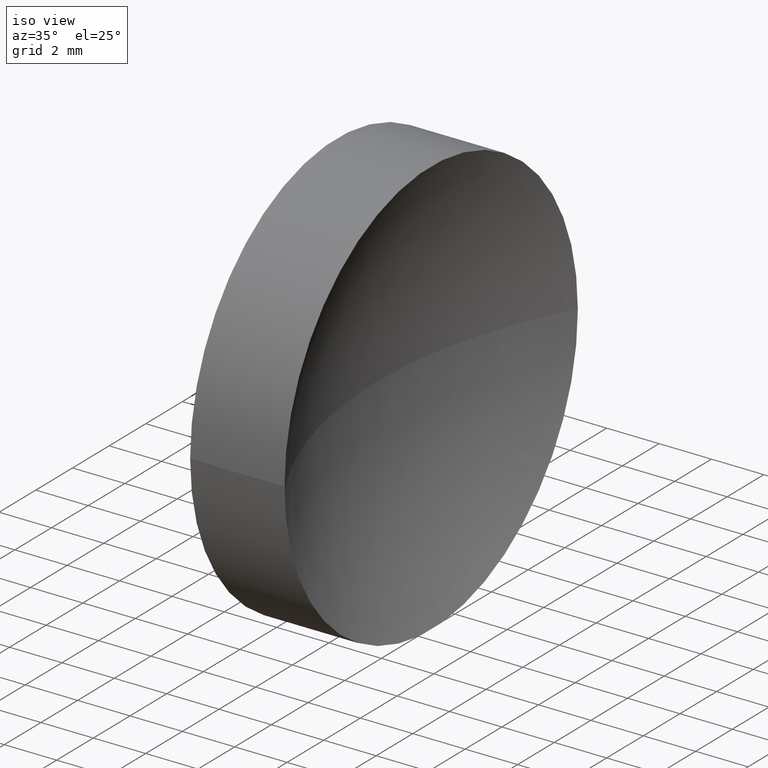
[diagram: clean part render]
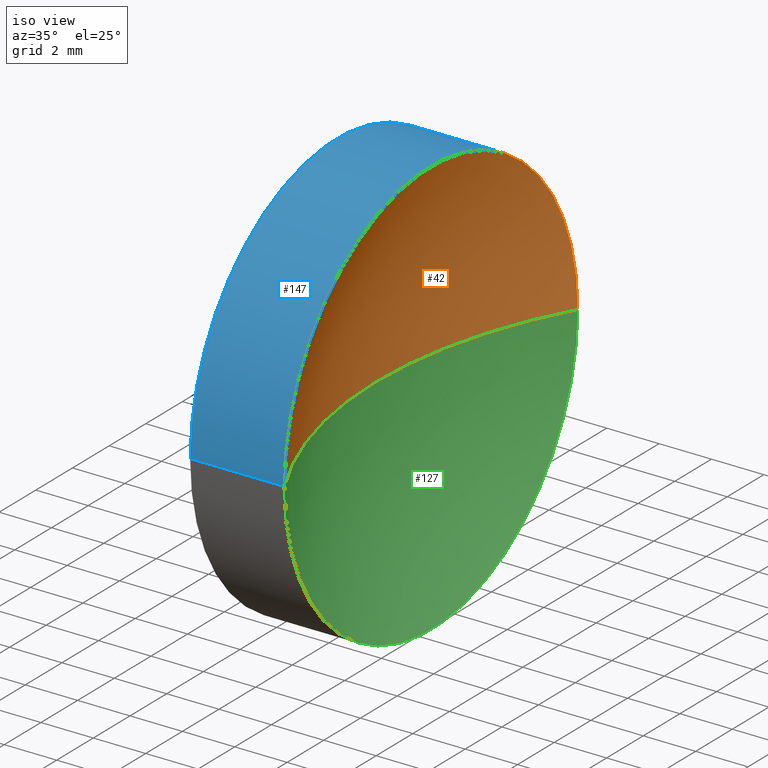
[diagram: same view with three faces highlighted in distinct colors, each labeled with its STEP entity id]
A machine part, iso view with three faces highlighted in distinct colors.
Their STEP definitions:

[orange] entity #42 — the highlighted spherical surface has radius 16.27 mm.
#1 = EDGE_CURVE ( 'NONE', #91, #118, #116, .T. ) ;
#3 = CIRCLE ( 'NONE', #92, 8.000000000000003600 ) ;
#6 = EDGE_LOOP ( 'NONE', ( #73, #148, #156 ) ) ;
#12 = CARTESIAN_POINT ( 'NONE',  ( 48.45710460198292000, 26.06225218280608000, 0.0000000000000000000 ) ) ;
#20 = CARTESIAN_POINT ( 'NONE',  ( 62.62442262622448700, 26.06225218280609100, 0.0000000000000000000 ) ) ;
#24 = VERTEX_POINT ( 'NONE', #94 ) ;
#26 = CARTESIAN_POINT ( 'NONE',  ( 62.62442262622448700, 26.06225218280609100, 0.0000000000000000000 ) ) ;
#33 = CARTESIAN_POINT ( 'NONE',  ( 62.62442262622448700, 26.06225218280609100, 0.0000000000000000000 ) ) ;
#35 = AXIS2_PLACEMENT_3D ( 'NONE', #20, #64, #135 ) ;
#40 = CARTESIAN_POINT ( 'NONE',  ( 48.45710460198292000, 34.06225218280609100, 9.797174393178819700E-016 ) ) ;
#41 = SPHERICAL_SURFACE ( 'NONE', #35, 16.27000000000000000 ) ;
#42 = ADVANCED_FACE ( 'NONE', ( #53 ), #41, .F. ) ;
#46 = DIRECTION ( 'NONE',  ( -4.969917281268344600E-032, -1.224646799147353200E-016, 1.000000000000000000 ) ) ;
#53 = FACE_OUTER_BOUND ( 'NONE', #6, .T. ) ;
#64 = DIRECTION ( 'NONE',  ( 0.0000000000000000000, 0.0000000000000000000, 1.000000000000000000 ) ) ;
#70 = DIRECTION ( 'NONE',  ( 0.0000000000000000000, -0.0000000000000000000, -1.000000000000000000 ) ) ;
#73 = ORIENTED_EDGE ( 'NONE', *, *, #1, .F. ) ;
#77 = AXIS2_PLACEMENT_3D ( 'NONE', #26, #70, #109 ) ;
#84 = DIRECTION ( 'NONE',  ( 0.0000000000000000000, -1.000000000000000000, -1.224646799147353200E-016 ) ) ;
#87 = DIRECTION ( 'NONE',  ( -1.000000000000000000, 4.058245434298766700E-016, -0.0000000000000000000 ) ) ;
#91 = VERTEX_POINT ( 'NONE', #40 ) ;
#92 = AXIS2_PLACEMENT_3D ( 'NONE', #12, #87, #160 ) ;
#94 = CARTESIAN_POINT ( 'NONE',  ( 48.45710460198292000, 18.06225218280608400, 0.0000000000000000000 ) ) ;
#102 = EDGE_CURVE ( 'NONE', #24, #118, #143, .T. ) ;
#109 = DIRECTION ( 'NONE',  ( -1.000000000000000000, 0.0000000000000000000, 0.0000000000000000000 ) ) ;
#116 = CIRCLE ( 'NONE', #150, 16.27000000000000000 ) ;
#118 = VERTEX_POINT ( 'NONE', #137 ) ;
#135 = DIRECTION ( 'NONE',  ( 0.0000000000000000000, -1.000000000000000000, 0.0000000000000000000 ) ) ;
#137 = CARTESIAN_POINT ( 'NONE',  ( 46.35442262622449100, 26.06225218280609800, 0.0000000000000000000 ) ) ;
#143 = CIRCLE ( 'NONE', #77, 16.27000000000000000 ) ;
#148 = ORIENTED_EDGE ( 'NONE', *, *, #162, .F. ) ;
#150 = AXIS2_PLACEMENT_3D ( 'NONE', #33, #46, #84 ) ;
#156 = ORIENTED_EDGE ( 'NONE', *, *, #102, .T. ) ;
#160 = DIRECTION ( 'NONE',  ( 0.0000000000000000000, -1.000000000000000000, 0.0000000000000000000 ) ) ;
#162 = EDGE_CURVE ( 'NONE', #24, #91, #3, .T. ) ;

[blue] entity #147 — the highlighted cylindrical surface (partial cylindrical patch) has radius 8 mm, axis along (-1, 0, -0).
#3 = CIRCLE ( 'NONE', #92, 8.000000000000003600 ) ;
#8 = DIRECTION ( 'NONE',  ( -1.000000000000000000, 4.058245434298766700E-016, -0.0000000000000000000 ) ) ;
#12 = CARTESIAN_POINT ( 'NONE',  ( 48.45710460198292000, 26.06225218280608000, 0.0000000000000000000 ) ) ;
#13 = CARTESIAN_POINT ( 'NONE',  ( 44.85442262622448300, 34.06225218280608400, 9.797174393178827600E-016 ) ) ;
#24 = VERTEX_POINT ( 'NONE', #94 ) ;
#34 = ORIENTED_EDGE ( 'NONE', *, *, #90, .T. ) ;
#40 = CARTESIAN_POINT ( 'NONE',  ( 48.45710460198292000, 34.06225218280609100, 9.797174393178819700E-016 ) ) ;
#47 = CARTESIAN_POINT ( 'NONE',  ( 43.01195023616492100, 34.06225218280608400, 9.797174393178827600E-016 ) ) ;
#49 = EDGE_CURVE ( 'NONE', #125, #78, #129, .T. ) ;
#51 = ORIENTED_EDGE ( 'NONE', *, *, #162, .T. ) ;
#59 = DIRECTION ( 'NONE',  ( -1.000000000000000000, 4.058245434298766700E-016, -0.0000000000000000000 ) ) ;
#60 = CYLINDRICAL_SURFACE ( 'NONE', #93, 8.000000000000000000 ) ;
#63 = LINE ( 'NONE', #98, #120 ) ;
#78 = VERTEX_POINT ( 'NONE', #13 ) ;
#85 = ORIENTED_EDGE ( 'NONE', *, *, #49, .F. ) ;
#86 = ORIENTED_EDGE ( 'NONE', *, *, #128, .F. ) ;
#87 = DIRECTION ( 'NONE',  ( -1.000000000000000000, 4.058245434298766700E-016, -0.0000000000000000000 ) ) ;
#89 = DIRECTION ( 'NONE',  ( -1.000000000000000000, 4.058245434298766700E-016, -0.0000000000000000000 ) ) ;
#90 = EDGE_CURVE ( 'NONE', #91, #78, #113, .T. ) ;
#91 = VERTEX_POINT ( 'NONE', #40 ) ;
#92 = AXIS2_PLACEMENT_3D ( 'NONE', #12, #87, #160 ) ;
#93 = AXIS2_PLACEMENT_3D ( 'NONE', #140, #8, #112 ) ;
#94 = CARTESIAN_POINT ( 'NONE',  ( 48.45710460198292000, 18.06225218280608400, 0.0000000000000000000 ) ) ;
#95 = VECTOR ( 'NONE', #59, 1000.000000000000000 ) ;
#97 = FACE_OUTER_BOUND ( 'NONE', #142, .T. ) ;
#98 = CARTESIAN_POINT ( 'NONE',  ( 43.01195023616492100, 18.06225218280608400, 0.0000000000000000000 ) ) ;
#112 = DIRECTION ( 'NONE',  ( 0.0000000000000000000, -1.000000000000000000, 0.0000000000000000000 ) ) ;
#113 = LINE ( 'NONE', #47, #95 ) ;
#120 = VECTOR ( 'NONE', #89, 1000.000000000000000 ) ;
#125 = VERTEX_POINT ( 'NONE', #161 ) ;
#128 = EDGE_CURVE ( 'NONE', #24, #125, #63, .T. ) ;
#129 = CIRCLE ( 'NONE', #164, 8.000000000000000000 ) ;
#139 = CARTESIAN_POINT ( 'NONE',  ( 44.85442262622448300, 26.06225218280608400, 0.0000000000000000000 ) ) ;
#140 = CARTESIAN_POINT ( 'NONE',  ( 43.01195023616492100, 26.06225218280608400, 0.0000000000000000000 ) ) ;
#142 = EDGE_LOOP ( 'NONE', ( #51, #34, #85, #86 ) ) ;
#147 = ADVANCED_FACE ( 'NONE', ( #97 ), #60, .T. ) ;
#160 = DIRECTION ( 'NONE',  ( 0.0000000000000000000, -1.000000000000000000, 0.0000000000000000000 ) ) ;
#161 = CARTESIAN_POINT ( 'NONE',  ( 44.85442262622448300, 18.06225218280608400, 0.0000000000000000000 ) ) ;
#162 = EDGE_CURVE ( 'NONE', #24, #91, #3, .T. ) ;
#163 = DIRECTION ( 'NONE',  ( -1.000000000000000000, 4.058245434298766700E-016, -0.0000000000000000000 ) ) ;
#164 = AXIS2_PLACEMENT_3D ( 'NONE', #139, #163, #166 ) ;
#166 = DIRECTION ( 'NONE',  ( 0.0000000000000000000, -1.000000000000000000, 0.0000000000000000000 ) ) ;

[green] entity #127 — the highlighted spherical surface has radius 16.27 mm.
#1 = EDGE_CURVE ( 'NONE', #91, #118, #116, .T. ) ;
#15 = FACE_OUTER_BOUND ( 'NONE', #75, .T. ) ;
#24 = VERTEX_POINT ( 'NONE', #94 ) ;
#25 = DIRECTION ( 'NONE',  ( 0.0000000000000000000, -1.000000000000000000, 0.0000000000000000000 ) ) ;
#26 = CARTESIAN_POINT ( 'NONE',  ( 62.62442262622448700, 26.06225218280609100, 0.0000000000000000000 ) ) ;
#31 = ORIENTED_EDGE ( 'NONE', *, *, #102, .F. ) ;
#33 = CARTESIAN_POINT ( 'NONE',  ( 62.62442262622448700, 26.06225218280609100, 0.0000000000000000000 ) ) ;
#40 = CARTESIAN_POINT ( 'NONE',  ( 48.45710460198292000, 34.06225218280609100, 9.797174393178819700E-016 ) ) ;
#43 = AXIS2_PLACEMENT_3D ( 'NONE', #88, #126, #68 ) ;
#46 = DIRECTION ( 'NONE',  ( -4.969917281268344600E-032, -1.224646799147353200E-016, 1.000000000000000000 ) ) ;
#62 = AXIS2_PLACEMENT_3D ( 'NONE', #69, #67, #25 ) ;
#67 = DIRECTION ( 'NONE',  ( -1.000000000000000000, 4.058245434298766700E-016, -0.0000000000000000000 ) ) ;
#68 = DIRECTION ( 'NONE',  ( 0.0000000000000000000, -1.000000000000000000, 0.0000000000000000000 ) ) ;
#69 = CARTESIAN_POINT ( 'NONE',  ( 48.45710460198292000, 26.06225218280608000, 0.0000000000000000000 ) ) ;
#70 = DIRECTION ( 'NONE',  ( 0.0000000000000000000, -0.0000000000000000000, -1.000000000000000000 ) ) ;
#72 = ORIENTED_EDGE ( 'NONE', *, *, #157, .F. ) ;
#75 = EDGE_LOOP ( 'NONE', ( #72, #124, #31 ) ) ;
#77 = AXIS2_PLACEMENT_3D ( 'NONE', #26, #70, #109 ) ;
#84 = DIRECTION ( 'NONE',  ( 0.0000000000000000000, -1.000000000000000000, -1.224646799147353200E-016 ) ) ;
#88 = CARTESIAN_POINT ( 'NONE',  ( 62.62442262622448700, 26.06225218280609100, 0.0000000000000000000 ) ) ;
#91 = VERTEX_POINT ( 'NONE', #40 ) ;
#94 = CARTESIAN_POINT ( 'NONE',  ( 48.45710460198292000, 18.06225218280608400, 0.0000000000000000000 ) ) ;
#102 = EDGE_CURVE ( 'NONE', #24, #118, #143, .T. ) ;
#109 = DIRECTION ( 'NONE',  ( -1.000000000000000000, 0.0000000000000000000, 0.0000000000000000000 ) ) ;
#116 = CIRCLE ( 'NONE', #150, 16.27000000000000000 ) ;
#118 = VERTEX_POINT ( 'NONE', #137 ) ;
#124 = ORIENTED_EDGE ( 'NONE', *, *, #1, .T. ) ;
#126 = DIRECTION ( 'NONE',  ( 0.0000000000000000000, 0.0000000000000000000, 1.000000000000000000 ) ) ;
#127 = ADVANCED_FACE ( 'NONE', ( #15 ), #132, .F. ) ;
#131 = CIRCLE ( 'NONE', #62, 8.000000000000003600 ) ;
#132 = SPHERICAL_SURFACE ( 'NONE', #43, 16.27000000000000000 ) ;
#137 = CARTESIAN_POINT ( 'NONE',  ( 46.35442262622449100, 26.06225218280609800, 0.0000000000000000000 ) ) ;
#143 = CIRCLE ( 'NONE', #77, 16.27000000000000000 ) ;
#150 = AXIS2_PLACEMENT_3D ( 'NONE', #33, #46, #84 ) ;
#157 = EDGE_CURVE ( 'NONE', #91, #24, #131, .T. ) ;